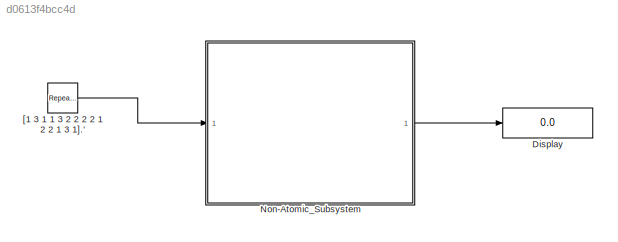
MODEL slx_d0613f4bcc4d
KIND model
CONFIG AbsTol = auto
CONFIG EnableMultiTasking = off
CONFIG FixedStep = auto
CONFIG MaxStep = auto
CONFIG MinStep = auto
CONFIG RelTol = 1e-3
CONFIG SampleTimeConstraint = Unconstrained
CONFIG Solver = FixedStepDiscrete
CONFIG SolverName = FixedStepDiscrete
CONFIG StartTime = 0.0
CONFIG StopTime = 10.0
BLOCK [Display] Display
  Decimation = 1
  Ports = [1]
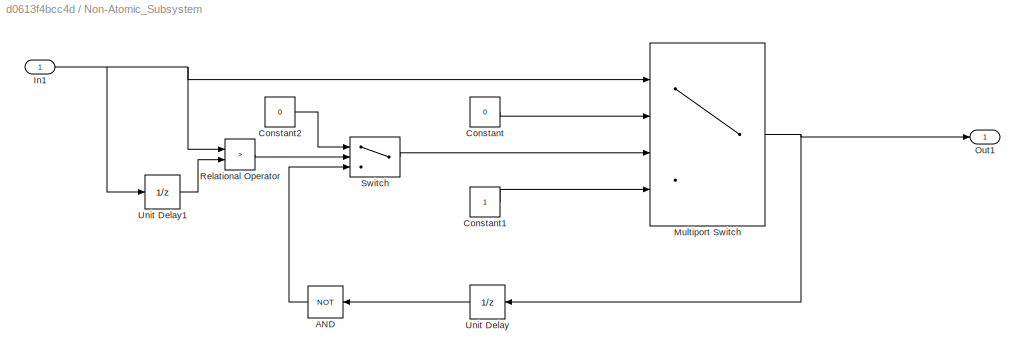
BLOCK [SubSystem] Non-Atomic_Subsystem
  Ports = [1, 1]
  RequestExecContextInheritance = off
BLOCK [Logic] Non-Atomic_Subsystem/AND
  AllPortsSameDT = off
  IconShape = distinctive
  Operator = NOT
  OutDataTypeStr = boolean
  Ports = [1, 1]
BLOCK [Constant] Non-Atomic_Subsystem/Constant
  Value = 0
BLOCK [Constant] Non-Atomic_Subsystem/Constant1
BLOCK [Constant] Non-Atomic_Subsystem/Constant2
  Value = 0
BLOCK [Inport] Non-Atomic_Subsystem/In1
  IconDisplay = Port number
BLOCK [MultiPortSwitch] Non-Atomic_Subsystem/Multiport Switch
  InputSameDT = off
  Ports = [4, 1]
  SaturateOnIntegerOverflow = off
BLOCK [Outport] Non-Atomic_Subsystem/Out1
  IconDisplay = Port number
BLOCK [RelationalOperator] Non-Atomic_Subsystem/Relational Operator
  InputSameDT = off
  Operator = >
  OutDataTypeStr = boolean
  Ports = [2, 1]
  RndMeth = Simplest
BLOCK [Switch] Non-Atomic_Subsystem/Switch
  Criteria = u2 > Threshold
  InputSameDT = off
  SaturateOnIntegerOverflow = off
BLOCK [UnitDelay] Non-Atomic_Subsystem/Unit Delay
  HasFrameUpgradeWarning = on
  SampleTime = -1
BLOCK [UnitDelay] Non-Atomic_Subsystem/Unit Delay1
  HasFrameUpgradeWarning = on
  SampleTime = -1
BLOCK [Reference] [1 3 1 1 3 2 2 2 2 1 2 2 1 3 1].'  REF=simulink/Sources/Repeating
Sequence
Stair
  Ports = [0, 1]
  SourceBlock = simulink/Sources/Repeating\nSequence\nStair
  SourceProductBaseCode = SL
  SourceProductName = Simulink
  SourceType = Repeating Sequence Stair
LINE Non-Atomic_Subsystem/AND:1 -> Non-Atomic_Subsystem/Switch:3
LINE Non-Atomic_Subsystem/Constant1:1 -> Non-Atomic_Subsystem/Multiport Switch:4
LINE Non-Atomic_Subsystem/Constant2:1 -> Non-Atomic_Subsystem/Switch:1
LINE Non-Atomic_Subsystem/Constant:1 -> Non-Atomic_Subsystem/Multiport Switch:2
NET Non-Atomic_Subsystem/In1:1 -> Non-Atomic_Subsystem/Multiport Switch:1, Non-Atomic_Subsystem/Relational Operator:1, Non-Atomic_Subsystem/Unit Delay1:1
NET Non-Atomic_Subsystem/Multiport Switch:1 -> Non-Atomic_Subsystem/Out1:1, Non-Atomic_Subsystem/Unit Delay:1
LINE Non-Atomic_Subsystem/Relational Operator:1 -> Non-Atomic_Subsystem/Switch:2
LINE Non-Atomic_Subsystem/Switch:1 -> Non-Atomic_Subsystem/Multiport Switch:3
LINE Non-Atomic_Subsystem/Unit Delay1:1 -> Non-Atomic_Subsystem/Relational Operator:2
LINE Non-Atomic_Subsystem/Unit Delay:1 -> Non-Atomic_Subsystem/AND:1
LINE Non-Atomic_Subsystem:1 -> Display:1
LINE [1 3 1 1 3 2 2 2 2 1 2 2 1 3 1].':1 -> Non-Atomic_Subsystem:1
note: NET lines group one-source signal fan-out (src -> all destinations, sorted); 1:1 wires keep LINE
